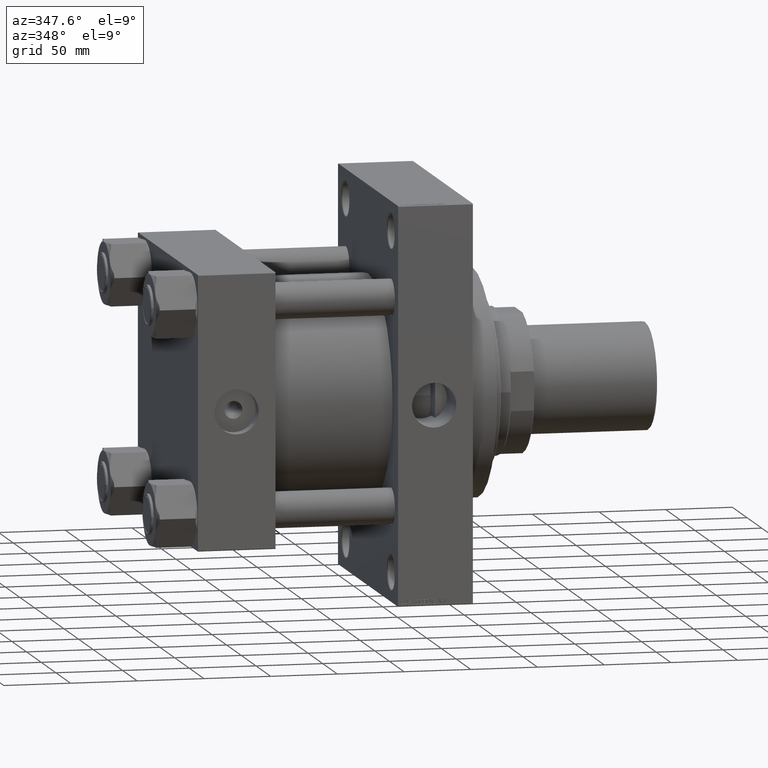
[diagram: clean part render]
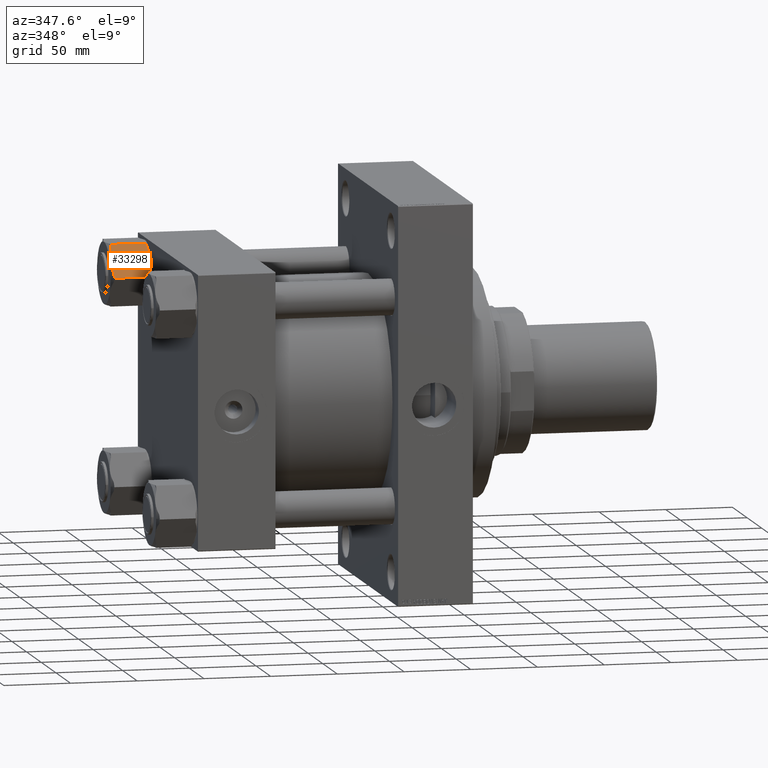
[diagram: same view with one face highlighted and labeled with its STEP entity id]
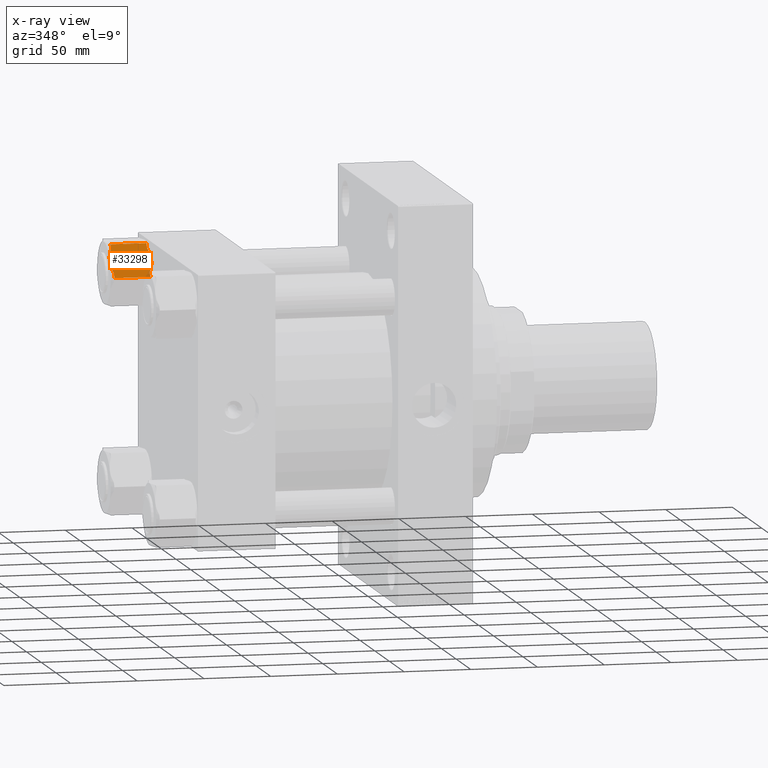
[diagram: x-ray of the same camera — body ghosted, the highlighted face saturated]
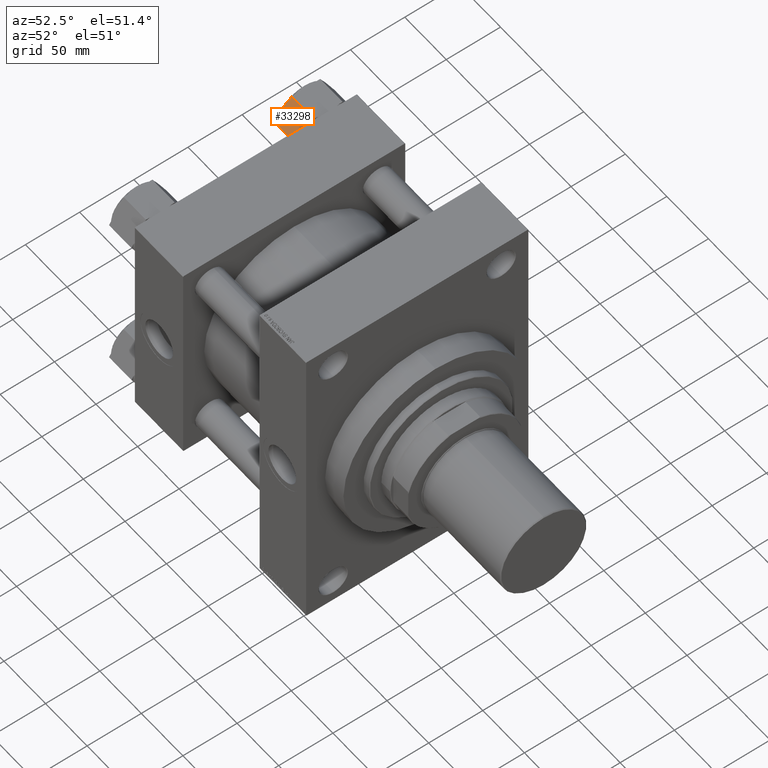
[diagram: same view with one face highlighted and labeled with its STEP entity id]
A machine part, auxiliary view. The second image highlights one B-rep face of the part: STEP entity #33298.
The next image is the same camera in x-ray: the body ghosted, the highlighted face saturated — about 1% of this face is hidden behind the body in this view.
A second angle (auxiliary view) of the same face is appended — the face is thin or edge-on in the first view.
In plain terms, the highlighted planar face has unit normal (0, 0.866, -0.5).
Its self-contained STEP definition (entity closure, byte-faithful):
#507 = DIRECTION ( 'NONE',  ( -0.000000000000000000, -0.000000000000000000, 1.000000000000000000 ) ) ;
#592 = CARTESIAN_POINT ( 'NONE',  ( -15.84797143746254733, -18.65770077089800694, -29.61657409342406311 ) ) ;
#1049 = EDGE_CURVE ( 'NONE', #9599, #24001, #42567, .T. ) ;
#1764 = VECTOR ( 'NONE', #2775, 1000.000000000000000 ) ;
#2095 = AXIS2_PLACEMENT_3D ( 'NONE', #14260, #46343, #22651 ) ;
#2110 = VERTEX_POINT ( 'NONE', #27225 ) ;
#2764 = CARTESIAN_POINT ( 'NONE',  ( -24.86944657925255342, -3.032047466098072963, -28.99999999999999645 ) ) ;
#2775 = DIRECTION ( 'NONE',  ( -0.4999999999999996669, 0.8660254037844388186, 0.000000000000000000 ) ) ;
#3282 = CARTESIAN_POINT ( 'NONE',  ( -19.96500000000001762, -11.52679812437087747, -31.00000000000000000 ) ) ;
#3470 = LINE ( 'NONE', #22291, #19081 ) ;
#3560 = EDGE_CURVE ( 'NONE', #48732, #35531, #31675, .T. ) ;
#3596 = ORIENTED_EDGE ( 'NONE', *, *, #3560, .T. ) ;
#3934 = DIRECTION ( 'NONE',  ( -0.4999999999999996669, 0.8660254037844388186, 0.000000000000000000 ) ) ;
#4418 = CARTESIAN_POINT ( 'NONE',  ( -18.28415441059625834, -14.43810808489622133, -30.77092979404567785 ) ) ;
#5175 = CARTESIAN_POINT ( 'NONE',  ( -18.90939003826338194, -13.35516821107453644, -30.90723860914737386 ) ) ;
#6879 = FACE_OUTER_BOUND ( 'NONE', #13048, .T. ) ;
#7355 = CARTESIAN_POINT ( 'NONE',  ( -15.85409835805183221, -18.64708863314343290, -1.410264737635122945 ) ) ;
#7603 = CARTESIAN_POINT ( 'NONE',  ( -16.65815586667606141, -17.25442017599901234, -0.9177057102691476009 ) ) ;
#8316 = CARTESIAN_POINT ( 'NONE',  ( -23.28230434144013472, -5.781058460827749101, -0.8826024950749967735 ) ) ;
#9599 = VERTEX_POINT ( 'NONE', #38421 ) ;
#9659 = EDGE_CURVE ( 'NONE', #48732, #9599, #29756, .T. ) ;
#11636 = CARTESIAN_POINT ( 'NONE',  ( -20.17675130770547298, -11.16003410085585124, 2.535969586693416292E-14 ) ) ;
#11884 = CARTESIAN_POINT ( 'NONE',  ( -24.08202856253746305, -4.395895477843739130, -1.383425906575931341 ) ) ;
#12070 = EDGE_CURVE ( 'NONE', #49960, #35531, #12220, .T. ) ;
#12220 = LINE ( 'NONE', #42284, #42526 ) ;
#12380 = CARTESIAN_POINT ( 'NONE',  ( -20.38949137558736524, -10.79155749447876289, -0.01178697739764910171 ) ) ;
#12723 = VECTOR ( 'NONE', #3934, 1000.000000000000000 ) ;
#13048 = EDGE_LOOP ( 'NONE', ( #17372, #3596, #13203, #17703, #36083, #43140, #27702, #47426, #38193, #41588 ) ) ;
#13203 = ORIENTED_EDGE ( 'NONE', *, *, #12070, .F. ) ;
#13974 = CARTESIAN_POINT ( 'NONE',  ( -20.81146273741196140, -10.06068165645953805, -31.00000000000002132 ) ) ;
#14260 = CARTESIAN_POINT ( 'NONE',  ( -13.31000000000000405, -23.05359624874176205, -31.00000000000000000 ) ) ;
#14444 = B_SPLINE_CURVE_WITH_KNOTS ( 'NONE', 3,
 ( #3282, #13974, #14478, #29254, #41463, #37650, #34323, #2764 ),
 .UNSPECIFIED., .F., .F.,
 ( 4, 2, 2, 4 ),
 ( 0.01001235240522103942, 0.01501505178013396932, 0.01751640146759043254, 0.02001775115504689923 ),
 .UNSPECIFIED. ) ;
#14478 = CARTESIAN_POINT ( 'NONE',  ( -21.64175213325209413, -8.622578237878768093, -30.81213813433826587 ) ) ;
#14980 = CARTESIAN_POINT ( 'NONE',  ( -15.06055342074746584, -20.02154878264366289, -2.000000000000000000 ) ) ;
#16033 = DIRECTION ( 'NONE',  ( 0.4999999999999996669, -0.8660254037844388186, 0.000000000000000000 ) ) ;
#16123 = CARTESIAN_POINT ( 'NONE',  ( -19.54050862441264869, -12.26203875426297962, -30.98821302260235200 ) ) ;
#16314 = VERTEX_POINT ( 'NONE', #45132 ) ;
#16992 = CARTESIAN_POINT ( 'NONE',  ( -24.86944657925255342, -3.032047466098072963, -28.99999999999999645 ) ) ;
#17372 = ORIENTED_EDGE ( 'NONE', *, *, #9659, .F. ) ;
#17703 = ORIENTED_EDGE ( 'NONE', *, *, #43518, .F. ) ;
#17851 = VECTOR ( 'NONE', #46473, 1000.000000000000000 ) ;
#19081 = VECTOR ( 'NONE', #37838, 1000.000000000000000 ) ;
#19084 = PLANE ( 'NONE',  #2095 ) ;
#19935 = CARTESIAN_POINT ( 'NONE',  ( -19.75324869229453739, -11.89356214788588950, -31.00000000000002487 ) ) ;
#20267 = CARTESIAN_POINT ( 'NONE',  ( -21.64584558940375558, -8.615488163845524738, -0.2290702059543221203 ) ) ;
#20440 = CARTESIAN_POINT ( 'NONE',  ( -17.87195049697043814, -15.15206620637486523, -30.63660360727165965 ) ) ;
#22129 = B_SPLINE_CURVE_WITH_KNOTS ( 'NONE', 3,
 ( #26438, #34326, #42479, #29745, #7603, #7355, #46043, #14980 ),
 .UNSPECIFIED., .F., .F.,
 ( 4, 2, 2, 4 ),
 ( 0.01001235240522103942, 0.01501505178013396238, 0.01751640146759042907, 0.02001775115504689229 ),
 .UNSPECIFIED. ) ;
#22291 = CARTESIAN_POINT ( 'NONE',  ( -13.31000000000000405, -23.05359624874176205, -2.000000000000001776 ) ) ;
#22651 = DIRECTION ( 'NONE',  ( -0.4999999999999996669, 0.8660254037844388186, 0.000000000000000000 ) ) ;
#22805 = CARTESIAN_POINT ( 'NONE',  ( -24.86944657925254987, -3.032047466098083177, -2.000000000000000000 ) ) ;
#23587 = CARTESIAN_POINT ( 'NONE',  ( -19.96500000000001762, -11.52679812437087747, 0.000000000000000000 ) ) ;
#23669 = CARTESIAN_POINT ( 'NONE',  ( -26.62000000000000455, 1.322753825639812332E-14, -31.00000000000000000 ) ) ;
#23753 = CARTESIAN_POINT ( 'NONE',  ( -15.06055342074746051, -20.02154878264367355, -28.99999999999999645 ) ) ;
#24001 = VERTEX_POINT ( 'NONE', #30153 ) ;
#25851 = VERTEX_POINT ( 'NONE', #22805 ) ;
#26438 = CARTESIAN_POINT ( 'NONE',  ( -19.96500000000001762, -11.52679812437087747, 0.000000000000000000 ) ) ;
#26750 = VERTEX_POINT ( 'NONE', #16992 ) ;
#26855 = CARTESIAN_POINT ( 'NONE',  ( -13.31000000000000405, -23.05359624874176205, -28.99999999999999645 ) ) ;
#27225 = CARTESIAN_POINT ( 'NONE',  ( -26.62000000000000455, 1.322753825639812332E-14, -2.000000000000001776 ) ) ;
#27702 = ORIENTED_EDGE ( 'NONE', *, *, #36363, .F. ) ;
#27840 = CARTESIAN_POINT ( 'NONE',  ( -19.96500000000001762, -11.52679812437087747, -31.00000000000000000 ) ) ;
#29254 = CARTESIAN_POINT ( 'NONE',  ( -22.86684697778496300, -6.500651723057134568, -30.29409426249537773 ) ) ;
#29745 = CARTESIAN_POINT ( 'NONE',  ( -17.06315302221505092, -16.55294452568460173, -0.7059057375046209337 ) ) ;
#29756 = LINE ( 'NONE', #37662, #1764 ) ;
#30153 = CARTESIAN_POINT ( 'NONE',  ( -19.96500000000001762, -11.52679812437087747, -31.00000000000000000 ) ) ;
#30736 = B_SPLINE_CURVE_WITH_KNOTS ( 'NONE', 3,
 ( #42702, #11884, #8316, #31472, #20267, #39628, #43704, #12380, #11636, #23587 ),
 .UNSPECIFIED., .F., .F.,
 ( 4, 2, 2, 2, 4 ),
 ( 5.412492187803855642E-07, 0.005006446827219912694, 0.007509399616220479093, 0.008760876010720760124, 0.01001235240522103942 ),
 .UNSPECIFIED. ) ;
#31472 = CARTESIAN_POINT ( 'NONE',  ( -22.05804950302956158, -7.901530042366876394, -0.3633963927283424544 ) ) ;
#31675 = LINE ( 'NONE', #47230, #17851 ) ;
#33298 = ADVANCED_FACE ( 'NONE', ( #6879 ), #19084, .F. ) ;
#33364 = CARTESIAN_POINT ( 'NONE',  ( -26.62000000000000455, 1.322753825639812332E-14, -28.99999999999999645 ) ) ;
#34217 = VERTEX_POINT ( 'NONE', #33364 ) ;
#34323 = CARTESIAN_POINT ( 'NONE',  ( -24.47560625466584483, -3.714198918351685030, -29.30838987161982345 ) ) ;
#34326 = CARTESIAN_POINT ( 'NONE',  ( -19.11853726258805253, -12.99291459228220802, 2.486436982233420767E-14 ) ) ;
#35531 = VERTEX_POINT ( 'NONE', #36838 ) ;
#35594 = EDGE_CURVE ( 'NONE', #2110, #25851, #3470, .T. ) ;
#36083 = ORIENTED_EDGE ( 'NONE', *, *, #41370, .F. ) ;
#36363 = EDGE_CURVE ( 'NONE', #34217, #2110, #46608, .T. ) ;
#36492 = CARTESIAN_POINT ( 'NONE',  ( -16.64769565855987210, -17.27253778791400052, -30.11739750492499823 ) ) ;
#36838 = CARTESIAN_POINT ( 'NONE',  ( -13.31000000000000405, -23.05359624874176205, -2.000000000000001776 ) ) ;
#37278 = CARTESIAN_POINT ( 'NONE',  ( -15.06055342074746584, -20.02154878264366289, -2.000000000000000000 ) ) ;
#37650 = CARTESIAN_POINT ( 'NONE',  ( -24.07590164194817817, -4.406507615598305172, -29.58973526236487928 ) ) ;
#37662 = CARTESIAN_POINT ( 'NONE',  ( -13.31000000000000405, -23.05359624874176205, -28.99999999999999645 ) ) ;
#37838 = DIRECTION ( 'NONE',  ( 0.4999999999999996669, -0.8660254037844388186, 0.000000000000000000 ) ) ;
#38193 = ORIENTED_EDGE ( 'NONE', *, *, #49840, .F. ) ;
#38421 = CARTESIAN_POINT ( 'NONE',  ( -15.06055342074746051, -20.02154878264367355, -28.99999999999999645 ) ) ;
#38839 = CARTESIAN_POINT ( 'NONE',  ( -13.31000000000000405, -23.05359624874176205, -28.99999999999999645 ) ) ;
#39512 = EDGE_CURVE ( 'NONE', #26750, #34217, #42129, .T. ) ;
#39628 = CARTESIAN_POINT ( 'NONE',  ( -21.02060996173662843, -9.698428037667206070, -0.09276139085262687101 ) ) ;
#41370 = EDGE_CURVE ( 'NONE', #25851, #16314, #30736, .T. ) ;
#41463 = CARTESIAN_POINT ( 'NONE',  ( -23.27184413332395252, -5.799176072742724841, -30.08229428973085362 ) ) ;
#41588 = ORIENTED_EDGE ( 'NONE', *, *, #1049, .F. ) ;
#42129 = LINE ( 'NONE', #26855, #12723 ) ;
#42284 = CARTESIAN_POINT ( 'NONE',  ( -13.31000000000000405, -23.05359624874176205, -2.000000000000001776 ) ) ;
#42479 = CARTESIAN_POINT ( 'NONE',  ( -18.28824786674792691, -14.43101801086297620, -0.1878618656617356830 ) ) ;
#42526 = VECTOR ( 'NONE', #16033, 1000.000000000000000 ) ;
#42567 = B_SPLINE_CURVE_WITH_KNOTS ( 'NONE', 3,
 ( #23753, #592, #36492, #20440, #4418, #5175, #43373, #16123, #19935, #27840 ),
 .UNSPECIFIED., .F., .F.,
 ( 4, 2, 2, 2, 4 ),
 ( 5.412492187688563870E-07, 0.005006446827219904021, 0.007509399616220476491, 0.008760876010720758389, 0.01001235240522103942 ),
 .UNSPECIFIED. ) ;
#42702 = CARTESIAN_POINT ( 'NONE',  ( -24.86944657925254987, -3.032047466098083177, -2.000000000000000000 ) ) ;
#43140 = ORIENTED_EDGE ( 'NONE', *, *, #35594, .F. ) ;
#43373 = CARTESIAN_POINT ( 'NONE',  ( -19.11895617587300222, -12.99218901318872099, -30.94181803359235516 ) ) ;
#43518 = EDGE_CURVE ( 'NONE', #16314, #49960, #22129, .T. ) ;
#43704 = CARTESIAN_POINT ( 'NONE',  ( -20.81104382412701526, -10.06140723555302330, -0.05818196640764964483 ) ) ;
#45132 = CARTESIAN_POINT ( 'NONE',  ( -19.96500000000001762, -11.52679812437087747, 0.000000000000000000 ) ) ;
#45984 = VECTOR ( 'NONE', #507, 1000.000000000000000 ) ;
#46043 = CARTESIAN_POINT ( 'NONE',  ( -15.45439374533417975, -19.33939733039004238, -1.691610128380183209 ) ) ;
#46343 = DIRECTION ( 'NONE',  ( 0.8660254037844388186, 0.4999999999999996669, 0.000000000000000000 ) ) ;
#46473 = DIRECTION ( 'NONE',  ( -0.000000000000000000, -0.000000000000000000, 1.000000000000000000 ) ) ;
#46608 = LINE ( 'NONE', #23669, #45984 ) ;
#47230 = CARTESIAN_POINT ( 'NONE',  ( -13.31000000000000405, -23.05359624874176205, -31.00000000000000000 ) ) ;
#47426 = ORIENTED_EDGE ( 'NONE', *, *, #39512, .F. ) ;
#48732 = VERTEX_POINT ( 'NONE', #38839 ) ;
#49840 = EDGE_CURVE ( 'NONE', #24001, #26750, #14444, .T. ) ;
#49960 = VERTEX_POINT ( 'NONE', #37278 ) ;